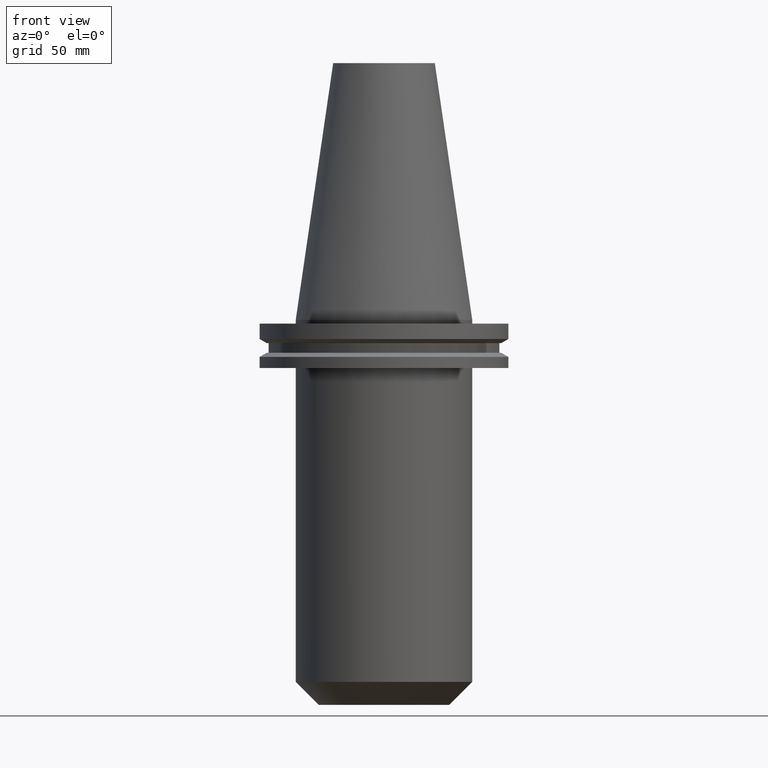
[diagram: clean part render]
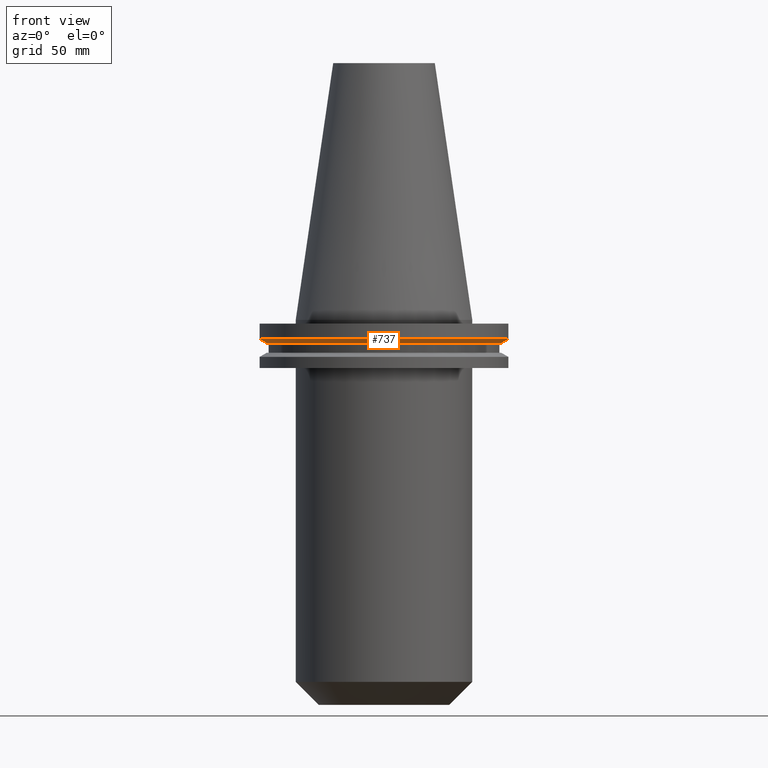
[diagram: same view with one face highlighted and labeled with its STEP entity id]
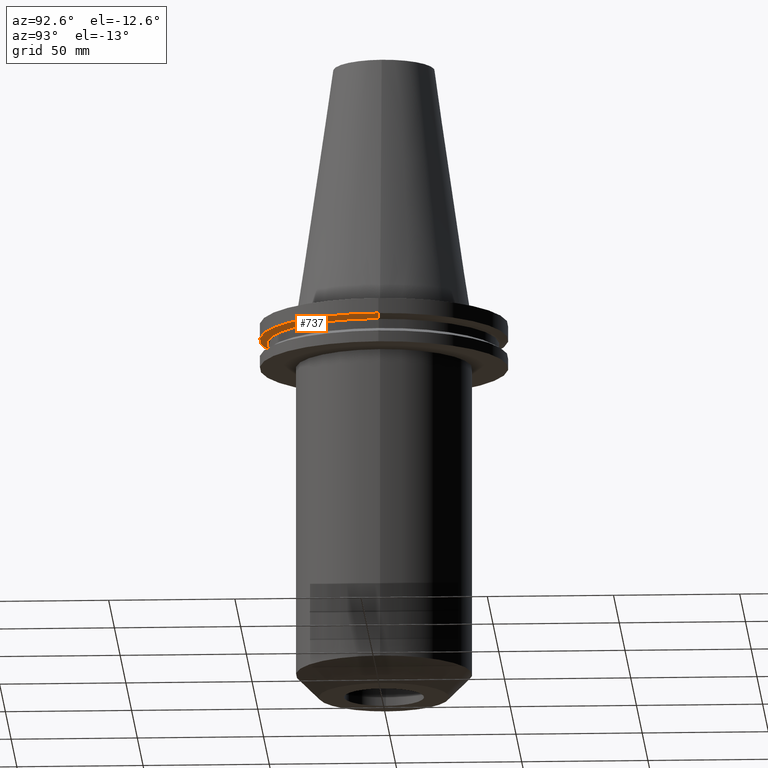
[diagram: same view with one face highlighted and labeled with its STEP entity id]
A machine part, front view. The second image highlights one B-rep face of the part: STEP entity #737.
A second angle (auxiliary view) of the same face is appended — the face is thin or edge-on in the first view.
In plain terms, the highlighted conical surface has half-angle 60 deg.
Its self-contained STEP definition (entity closure, byte-faithful):
#29 = CARTESIAN_POINT ( 'NONE',  ( 0.000000000000000000, 0.000000000000000000, -7.602389855251287187 ) ) ;
#37 = DIRECTION ( 'NONE',  ( -0.8660254037844273833, 1.060575238724893110E-16, 0.5000000000000195399 ) ) ;
#69 = DIRECTION ( 'NONE',  ( 0.8660254037844273833, 0.000000000000000000, 0.5000000000000195399 ) ) ;
#100 = ORIENTED_EDGE ( 'NONE', *, *, #555, .T. ) ;
#101 = CARTESIAN_POINT ( 'NONE',  ( 49.21500000000000341, 0.000000000000000000, -7.602389855251287187 ) ) ;
#137 = EDGE_CURVE ( 'NONE', #463, #443, #454, .T. ) ;
#181 = DIRECTION ( 'NONE',  ( 1.000000000000000000, 0.000000000000000000, 0.000000000000000000 ) ) ;
#193 = VECTOR ( 'NONE', #37, 1000.000000000000000 ) ;
#201 = CARTESIAN_POINT ( 'NONE',  ( 0.000000000000000000, 0.000000000000000000, -9.204999999999991189 ) ) ;
#237 = EDGE_CURVE ( 'NONE', #388, #443, #690, .T. ) ;
#256 = VECTOR ( 'NONE', #69, 1000.000000000000000 ) ;
#294 = AXIS2_PLACEMENT_3D ( 'NONE', #29, #473, #405 ) ;
#298 = ORIENTED_EDGE ( 'NONE', *, *, #442, .F. ) ;
#321 = CARTESIAN_POINT ( 'NONE',  ( 0.000000000000000000, 0.000000000000000000, -9.204999999999991189 ) ) ;
#373 = CARTESIAN_POINT ( 'NONE',  ( 46.43919780457007818, 0.000000000000000000, -9.204999999999991189 ) ) ;
#384 = CIRCLE ( 'NONE', #654, 46.43919780457007818 ) ;
#388 = VERTEX_POINT ( 'NONE', #659 ) ;
#405 = DIRECTION ( 'NONE',  ( 1.000000000000000000, 0.000000000000000000, 0.000000000000000000 ) ) ;
#410 = CONICAL_SURFACE ( 'NONE', #655, 46.43919780457007818, 1.047197551196575205 ) ;
#426 = CARTESIAN_POINT ( 'NONE',  ( -46.43919780457007818, 5.687161494633754392E-15, -9.204999999999991189 ) ) ;
#442 = EDGE_CURVE ( 'NONE', #639, #388, #650, .T. ) ;
#443 = VERTEX_POINT ( 'NONE', #101 ) ;
#454 = LINE ( 'NONE', #619, #256 ) ;
#455 = DIRECTION ( 'NONE',  ( -0.000000000000000000, -0.000000000000000000, 1.000000000000000000 ) ) ;
#463 = VERTEX_POINT ( 'NONE', #373 ) ;
#473 = DIRECTION ( 'NONE',  ( -0.000000000000000000, -0.000000000000000000, 1.000000000000000000 ) ) ;
#555 = EDGE_CURVE ( 'NONE', #639, #463, #384, .T. ) ;
#571 = DIRECTION ( 'NONE',  ( -0.000000000000000000, -0.000000000000000000, 1.000000000000000000 ) ) ;
#619 = CARTESIAN_POINT ( 'NONE',  ( 46.43919780457007818, 0.000000000000000000, -9.204999999999991189 ) ) ;
#633 = CARTESIAN_POINT ( 'NONE',  ( -46.43919780457007818, 5.857130358318727293E-15, -9.204999999999991189 ) ) ;
#639 = VERTEX_POINT ( 'NONE', #633 ) ;
#650 = LINE ( 'NONE', #426, #193 ) ;
#654 = AXIS2_PLACEMENT_3D ( 'NONE', #321, #571, #181 ) ;
#655 = AXIS2_PLACEMENT_3D ( 'NONE', #201, #455, #689 ) ;
#659 = CARTESIAN_POINT ( 'NONE',  ( -49.21500000000000341, 6.027099222003699404E-15, -7.602389855251287187 ) ) ;
#665 = ORIENTED_EDGE ( 'NONE', *, *, #237, .F. ) ;
#689 = DIRECTION ( 'NONE',  ( 1.000000000000000000, 0.000000000000000000, 0.000000000000000000 ) ) ;
#690 = CIRCLE ( 'NONE', #294, 49.21500000000000341 ) ;
#712 = EDGE_LOOP ( 'NONE', ( #298, #100, #735, #665 ) ) ;
#735 = ORIENTED_EDGE ( 'NONE', *, *, #137, .T. ) ;
#737 = ADVANCED_FACE ( 'NONE', ( #742 ), #410, .T. ) ;
#742 = FACE_OUTER_BOUND ( 'NONE', #712, .T. ) ;